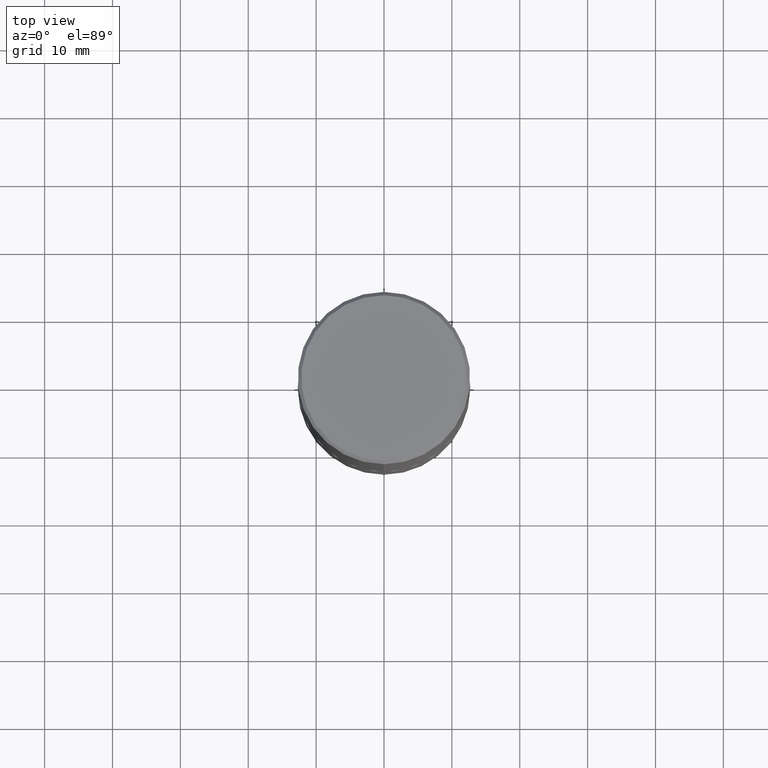
[diagram: clean part render]
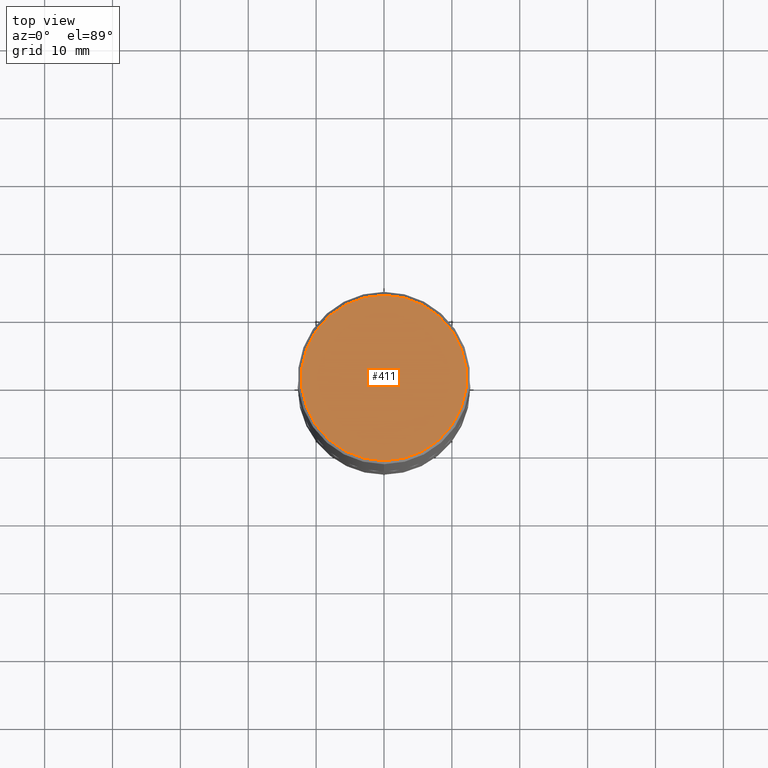
[diagram: same view with one face highlighted and labeled with its STEP entity id]
A machine part, top view. The second image highlights one B-rep face of the part: STEP entity #411.
In plain terms, the highlighted planar face has unit normal (0, -0, -1).
Its self-contained STEP definition (entity closure, byte-faithful):
#20 = EDGE_CURVE ( 'NONE', #77, #339, #379, .T. ) ;
#24 = EDGE_CURVE ( 'NONE', #339, #77, #355, .T. ) ;
#29 = CARTESIAN_POINT ( 'NONE',  ( 3.351822085289407153E-15, 0.4799999999999999267, -1.624274704443945561E-15 ) ) ;
#71 = ORIENTED_EDGE ( 'NONE', *, *, #24, .T. ) ;
#77 = VERTEX_POINT ( 'NONE', #336 ) ;
#103 = ORIENTED_EDGE ( 'NONE', *, *, #20, .T. ) ;
#110 = AXIS2_PLACEMENT_3D ( 'NONE', #165, #225, #196 ) ;
#165 = CARTESIAN_POINT ( 'NONE',  ( -2.486210284722413799E-45, 3.546147321124618175E-31, 1.016159231232910999E-16 ) ) ;
#194 = FACE_OUTER_BOUND ( 'NONE', #373, .T. ) ;
#196 = DIRECTION ( 'NONE',  ( -6.982962677686265922E-15, -1.000000000000000000, 3.489755554178314733E-15 ) ) ;
#217 = AXIS2_PLACEMENT_3D ( 'NONE', #29, #295, #364 ) ;
#225 = DIRECTION ( 'NONE',  ( -2.446673915175560132E-29, 3.489755554178314733E-15, 1.000000000000000000 ) ) ;
#262 = CARTESIAN_POINT ( 'NONE',  ( -2.486210284722413799E-45, 3.546147321124618175E-31, 1.016159231232910999E-16 ) ) ;
#285 = CARTESIAN_POINT ( 'NONE',  ( -3.361644018908049661E-15, -0.4799999999999999267, 1.776698589128881921E-15 ) ) ;
#295 = DIRECTION ( 'NONE',  ( 2.446673915175559852E-29, -3.489755554178315128E-15, -1.000000000000000000 ) ) ;
#332 = PLANE ( 'NONE',  #217 ) ;
#336 = CARTESIAN_POINT ( 'NONE',  ( 3.421651712066270057E-15, 0.4799999999999999267, -1.573466742882299844E-15 ) ) ;
#339 = VERTEX_POINT ( 'NONE', #285 ) ;
#355 = CIRCLE ( 'NONE', #401, 0.4799999999999999267 ) ;
#364 = DIRECTION ( 'NONE',  ( 6.982962677686265922E-15, 1.000000000000000000, -3.489755554178315128E-15 ) ) ;
#370 = DIRECTION ( 'NONE',  ( -2.446673915175560132E-29, 3.489755554178314733E-15, 1.000000000000000000 ) ) ;
#373 = EDGE_LOOP ( 'NONE', ( #103, #71 ) ) ;
#379 = CIRCLE ( 'NONE', #110, 0.4799999999999999267 ) ;
#399 = DIRECTION ( 'NONE',  ( -6.982962677686265922E-15, -1.000000000000000000, 3.489755554178314733E-15 ) ) ;
#401 = AXIS2_PLACEMENT_3D ( 'NONE', #262, #370, #399 ) ;
#411 = ADVANCED_FACE ( 'NONE', ( #194 ), #332, .F. ) ;